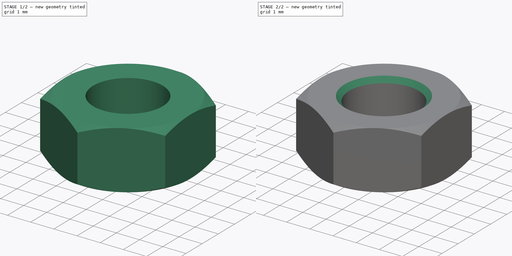
[diagram: build sequence overview — one tinted view per stage of 2, left to right]
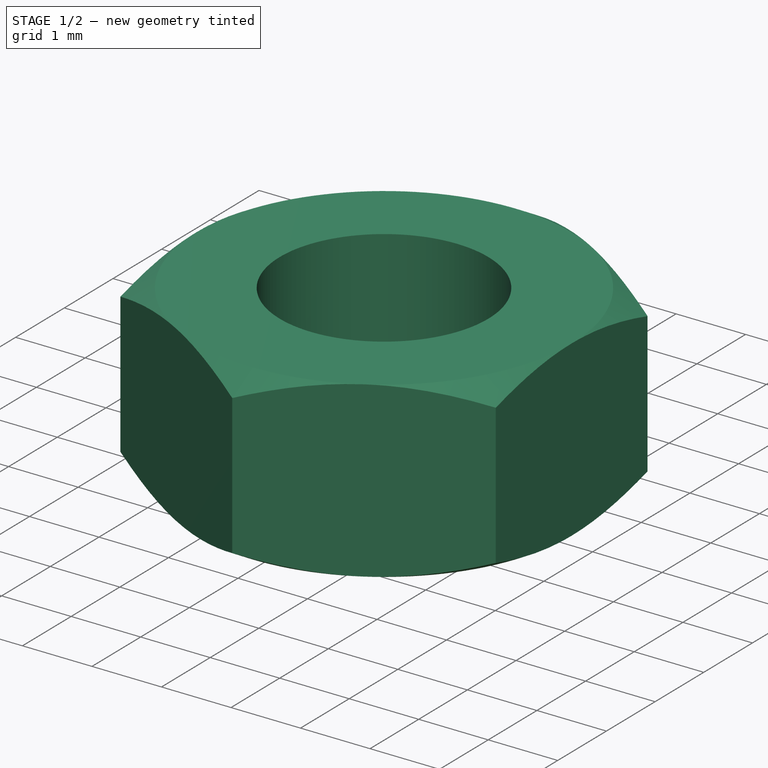
[diagram: stage 1 of 2 — iso view after this stage's code; geometry added in this stage tinted green]
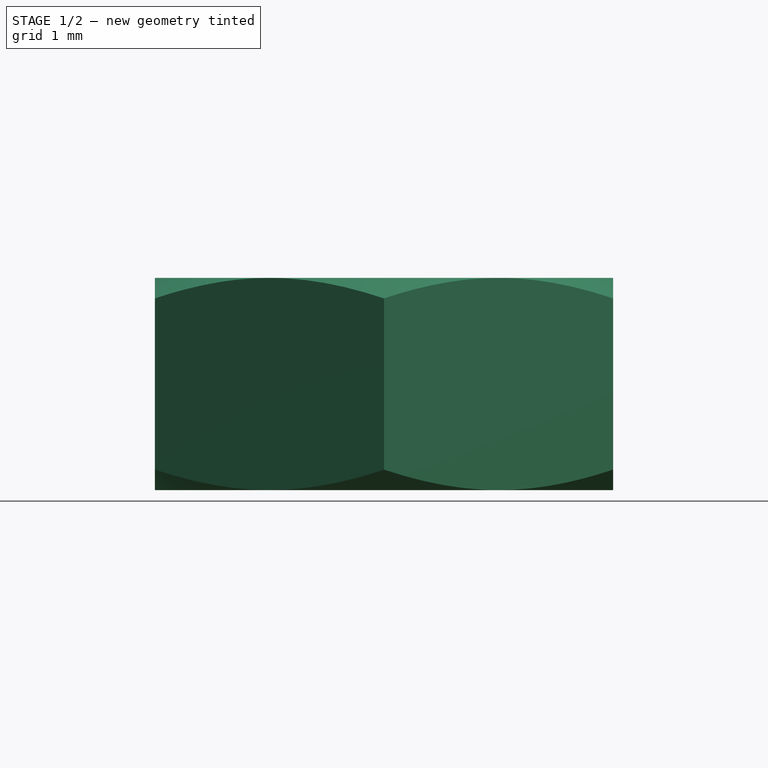
[diagram: stage 1 of 2 — front view after this stage's code; geometry added in this stage tinted green]
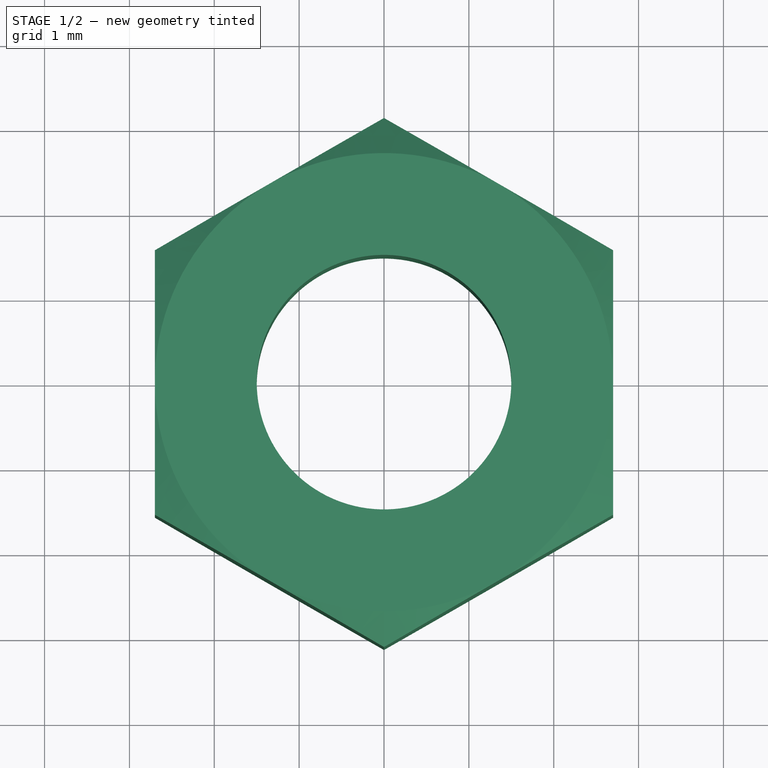
[diagram: stage 1 of 2 — top view after this stage's code; geometry added in this stage tinted green]
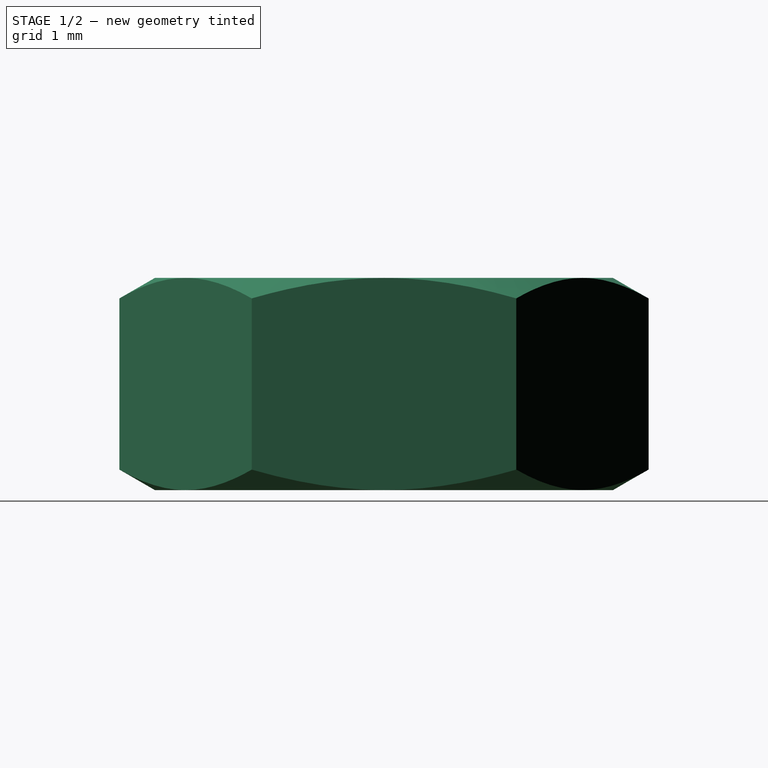
[diagram: stage 1 of 2 — right view after this stage's code; geometry added in this stage tinted green]
FCSTD DOCUMENT  (FreeCAD 0.20R29177 (Git))
Label: ecrouM3
License: All rights reserved
LicenseURL: http://en.wikipedia.org/wiki/All_rights_reserved
objects: Sketcher::SketchObject×2, Spreadsheet::Sheet×1, PartDesign::Pad×1, PartDesign::Groove×1, PartDesign::Chamfer×1, PartDesign::Body×1, App::Part×1
note: 9 computed .brp shape members not serialized (recipe doc carries the construction recipe); baked Part::Feature solids carry a one-line shape summary decoded from their .brp

FEATURE [Spreadsheet::Sheet] Spreadsheet  label="ecrouSp"
  cells = A1=nom; B1(nom)=ecrouM3; A2=ep; B2(ep)=2.5; A3=hexLarg; B3(hexLarg)=5.4; A4=diam; B4(diam)=3; A5=grandeLong; B5(grandeLong)==1.15 * hexLarg
FEATURE [Sketcher::SketchObject] Sketch
  FullyConstrained = true
  MapMode = 5
  Support = -> [XY_Plane001]
  expr: Constraints[19] = <<ecrouSp>>.hexLarg
  expr: Constraints[21] = <<ecrouSp>>.diam
  sketch-geometry (8):
    g0: LineSegment StartX=2.7 StartY=-1.55885 StartZ=0 EndX=2.7 EndY=1.55885 EndZ=0
    g1: LineSegment StartX=2.7 StartY=1.55885 StartZ=0 EndX=-2.129e-12 EndY=3.11769 EndZ=0
    g2: LineSegment StartX=-2.129e-12 StartY=3.11769 StartZ=0 EndX=-2.7 EndY=1.55885 EndZ=0
    g3: LineSegment StartX=-2.7 StartY=1.55885 StartZ=0 EndX=-2.7 EndY=-1.55885 EndZ=0
    g4: LineSegment StartX=-2.7 StartY=-1.55885 StartZ=0 EndX=3.9662e-12 EndY=-3.11769 EndZ=0
    g5: LineSegment StartX=3.9662e-12 StartY=-3.11769 StartZ=0 EndX=2.7 EndY=-1.55885 EndZ=0
    g6: Circle CenterX=0 CenterY=0 CenterZ=0 NormalX=0 NormalY=0 NormalZ=1 AngleXU=0 Radius=3.11769
    g7: Circle CenterX=0 CenterY=0 CenterZ=0 NormalX=0 NormalY=0 NormalZ=1 AngleXU=0 Radius=1.5
  constraints (18):
    c: Coincident(g0,g1)
    c: Coincident(g1,g2)
    c: Coincident(g2,g3)
    c: Coincident(g3,g4)
    c: Coincident(g4,g5)
    c: Coincident(g5,g0)
    c: Equal(g0, g1-g5) x5
    c: PointOnObject(g0,g6)
    c: PointOnObject(g1,g6)
    c: PointOnObject(g2,g6)
    c: PointOnObject(g3,g6)
    c: PointOnObject(g4,g6)
    c: PointOnObject(g5,g6)
    c: Coincident(g6,g-1)
    c: Vertical(g0)
    c: DistanceX(g3,g0) = 5.4
    c: Coincident(g7,g-1)
    c: Diameter(g7) = 3
FEATURE [PartDesign::Pad] Pad
  Direction = (1,1,1)
  Length = 2.5
  Length2 = 100
  Midplane = true
  Profile = -> Sketch
  Type = 0
  expr: Length = <<ecrouSp>>.ep
FEATURE [Sketcher::SketchObject] Sketch001
  FullyConstrained = true
  MapMode = 5
  Placement = pos=(0,0,0) rot=(0.57735,0.57735,0.57735;2.0944rad)
  Support = -> [YZ_Plane001]
  expr: Constraints[13] = <<ecrouSp>>.ep / 2
  expr: Constraints[15] = <<ecrouSp>>.hexLarg / 2
  expr: Constraints[17] = 3.5
  expr: Constraints[5] = <<ecrouSp>>.ep / 2
  expr: Constraints[6] = <<ecrouSp>>.hexLarg / 2
  sketch-geometry (6):
    g0: LineSegment StartX=-2.7 StartY=1.25 StartZ=0 EndX=-3.5 EndY=0.78812 EndZ=0
    g1: LineSegment StartX=-3.5 StartY=0.78812 StartZ=0 EndX=-3.5 EndY=1.25 EndZ=0
    g2: LineSegment StartX=-3.5 StartY=1.25 StartZ=0 EndX=-2.7 EndY=1.25 EndZ=0
    g3: LineSegment StartX=-2.7 StartY=-1.25 StartZ=0 EndX=-3.5 EndY=-0.78812 EndZ=0
    g4: LineSegment StartX=-3.5 StartY=-0.78812 StartZ=0 EndX=-3.5 EndY=-1.25 EndZ=0
    g5: LineSegment StartX=-3.5 StartY=-1.25 StartZ=0 EndX=-2.7 EndY=-1.25 EndZ=0
  constraints (18):
    c: Coincident(g0,g1)
    c: Vertical(g1)
    c: Coincident(g1,g2)
    c: Coincident(g2,g0)
    c: Horizontal(g2)
    c: DistanceY(g-1,g0) = 1.25
    c: DistanceX(g0,g-1) = 2.7
    c: Angle(g2,g0) = 0.523599
    c: Coincident(g3,g4)
    c: Vertical(g4)
    c: Coincident(g4,g5)
    c: Horizontal(g5)
    c: Coincident(g5,g3)
    c: DistanceY(g3,g-1) = 1.25
    c: Angle(g3,g5) = 0.523599
    c: DistanceX(g3,g-1) = 2.7
    c: Vertical(g0,g3)
    c: DistanceX(g0,g-1) = 3.5
FEATURE [PartDesign::Groove] Groove
  Angle = 360
  Axis = (-2e-16,3e-16,1)
  Base = (0,0,0)
  BaseFeature = -> Pad
  Profile = -> Sketch001
  ReferenceAxis = -> Sketch001 [V_Axis]
  Reversed = true
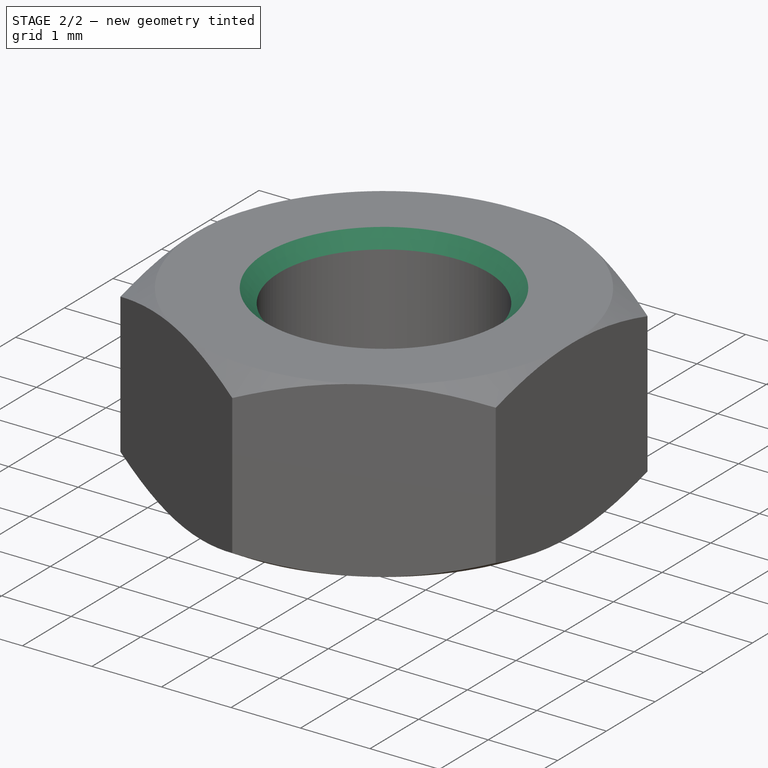
[diagram: stage 2 of 2 — iso view after this stage's code; geometry added in this stage tinted green]
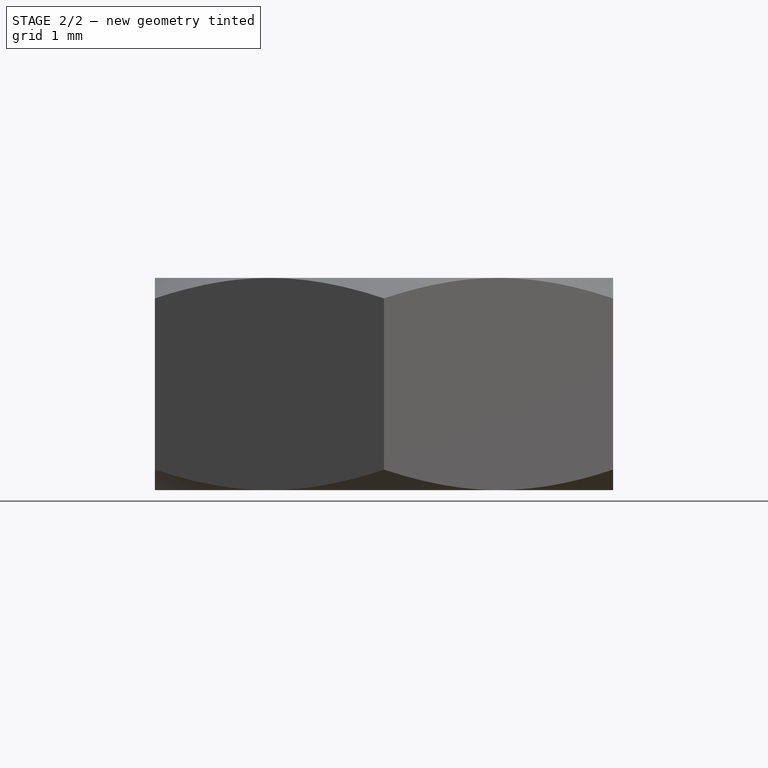
[diagram: stage 2 of 2 — front view after this stage's code; geometry added in this stage tinted green]
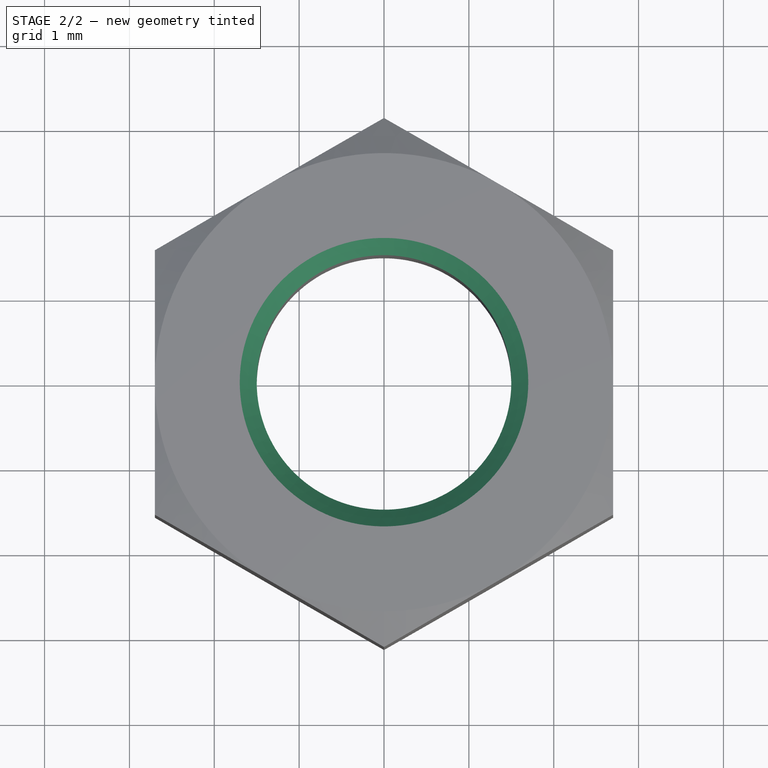
[diagram: stage 2 of 2 — top view after this stage's code; geometry added in this stage tinted green]
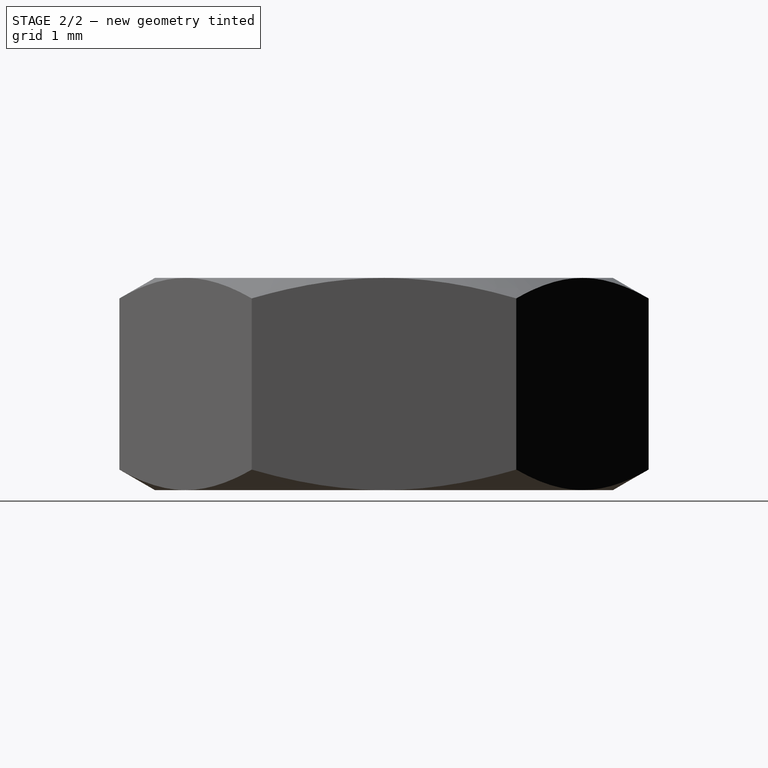
[diagram: stage 2 of 2 — right view after this stage's code; geometry added in this stage tinted green]
FEATURE [PartDesign::Chamfer] Chamfer
  Angle = 45
  Base = -> Groove [Edge37,Edge26]
  BaseFeature = -> Groove
  ChamferType = 0
  FlipDirection = false
  Size = 0.2
  Size2 = 1
  SupportTransform = false
  UseAllEdges = false
FEATURE [PartDesign::Body] Body  label="ecrouM3bdy"
  Group = -> [Sketch,Pad,Sketch001,Groove,Chamfer]
  Origin = -> Origin001
  Tip = -> Chamfer
FEATURE [App::Part] Part  label="EcrouM2prt"
  Group = -> [Body,Spreadsheet]
  Origin = -> Origin
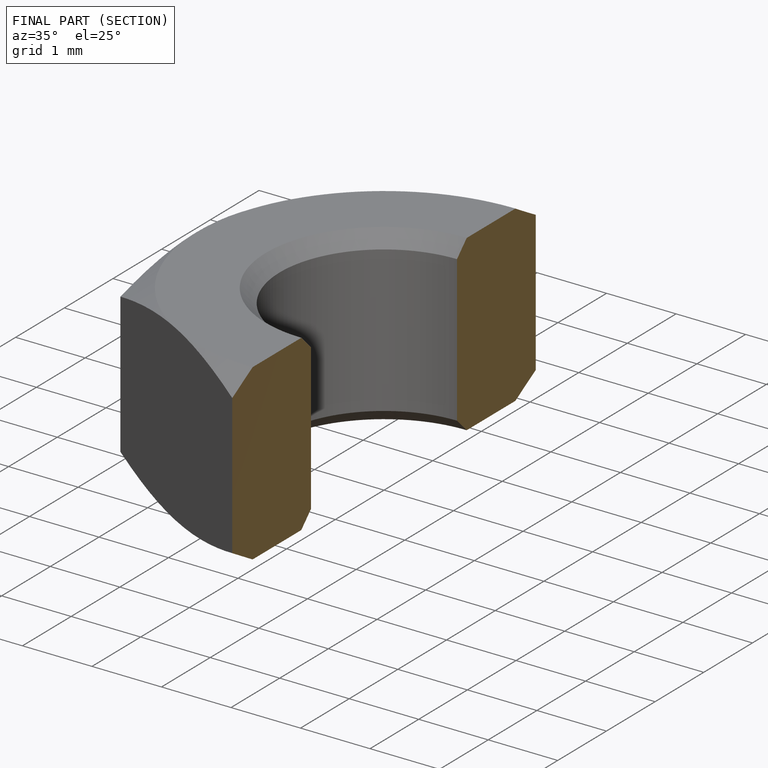
[diagram: finished part — half-section view (interior)]
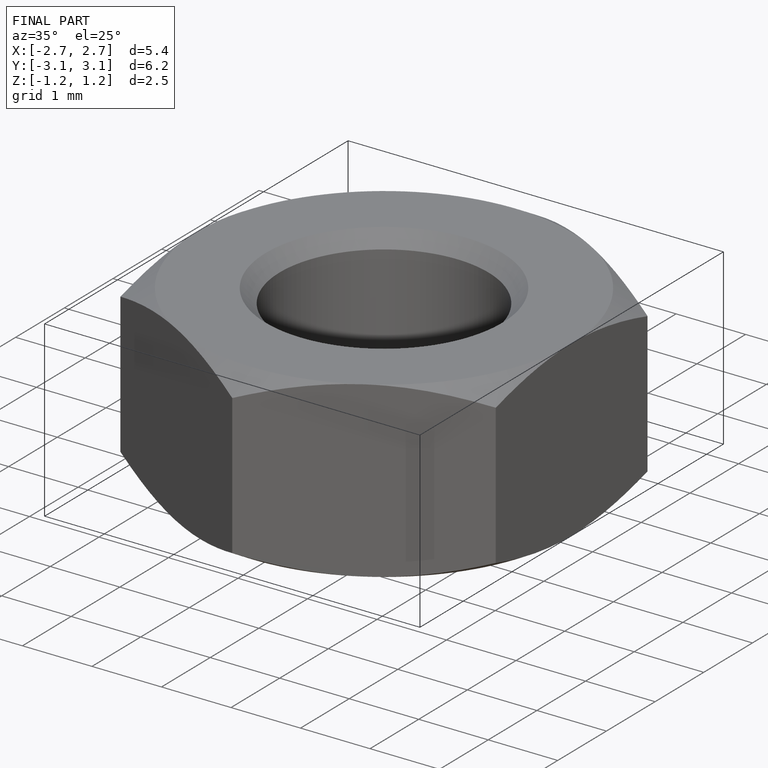
[diagram: finished part — iso view with bounding-box wireframe]
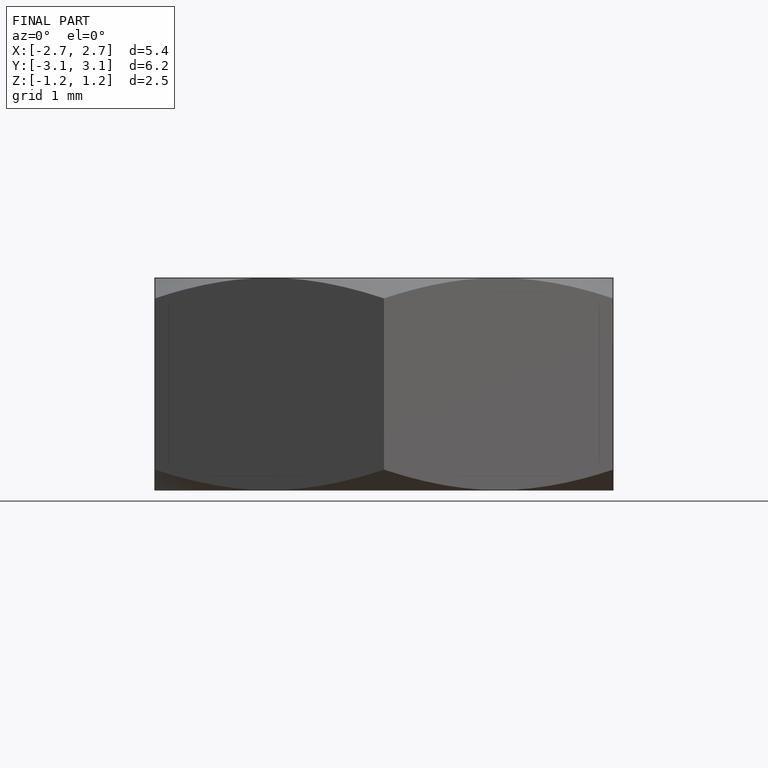
[diagram: finished part — front view with bounding-box wireframe]
